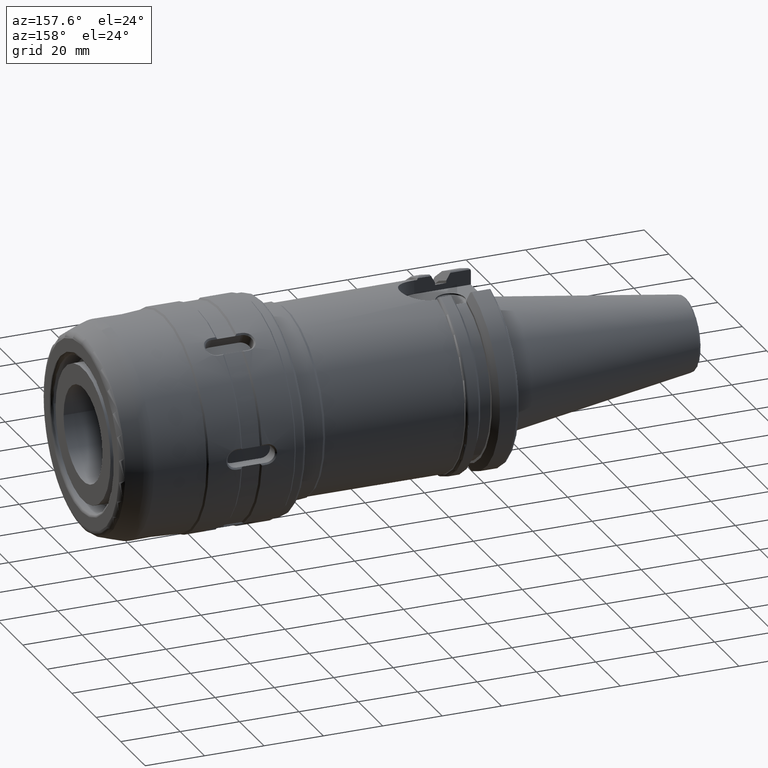
[diagram: clean part render]
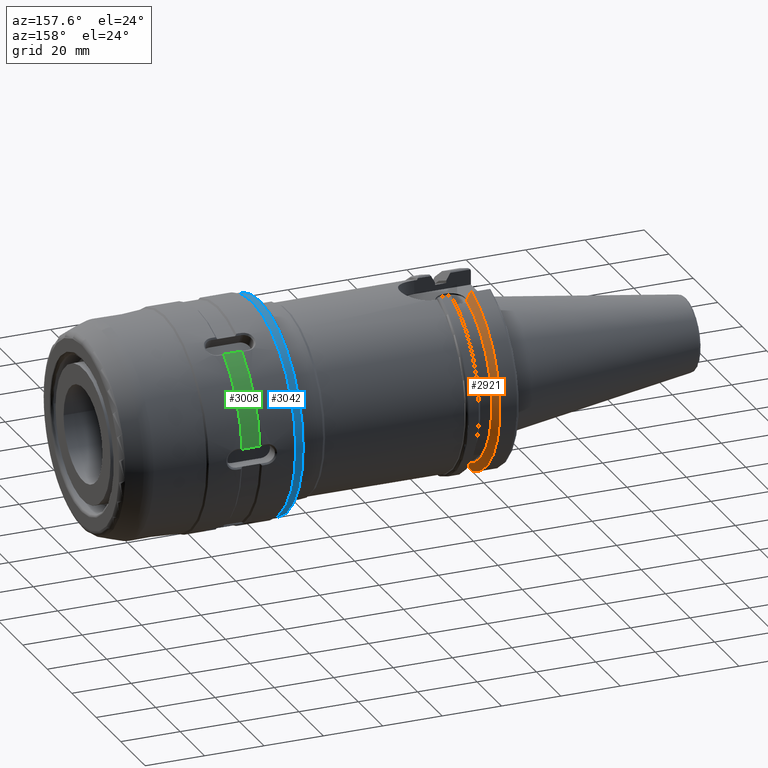
[diagram: same view with three faces highlighted in distinct colors, each labeled with its STEP entity id]
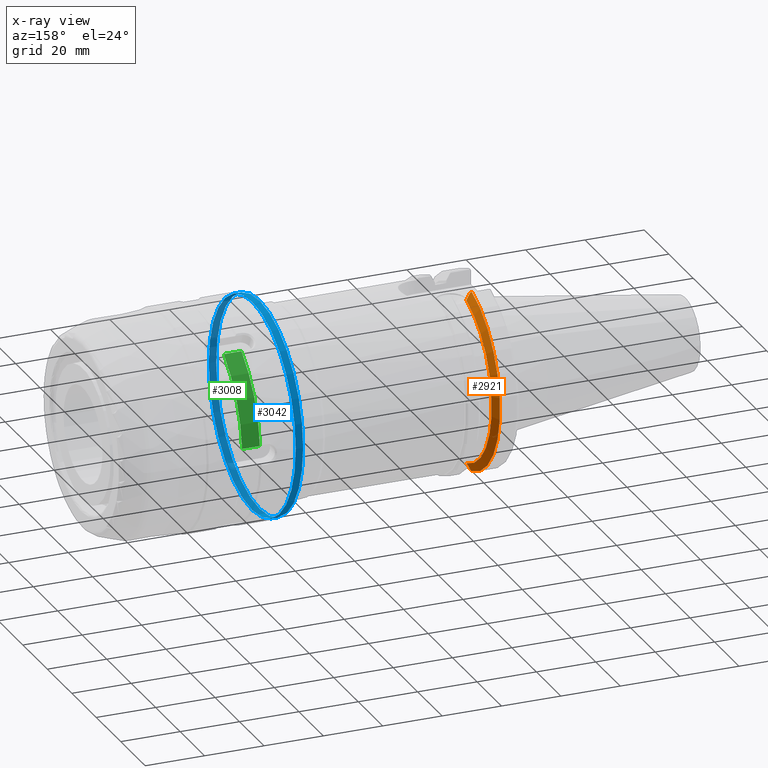
[diagram: x-ray of the same camera — body ghosted, the three highlighted faces saturated]
A machine part, auxiliary view with three faces highlighted in distinct colors.
The next image is the same camera in x-ray (body ghosted, the three faces saturated) — at least one of them is partly hidden behind the body in this view.
Their STEP definitions:

[orange] entity #2921 — the highlighted conical surface has half-angle 60 deg.
#42=(
BOUNDED_CURVE()
B_SPLINE_CURVE(2,(#4444,#4445,#4446),.UNSPECIFIED.,.F.,.F.)
B_SPLINE_CURVE_WITH_KNOTS((3,3),(0.,0.27654914279601),.UNSPECIFIED.)
CURVE()
GEOMETRIC_REPRESENTATION_ITEM()
RATIONAL_B_SPLINE_CURVE((1.,1.00095203903532,1.00031614444885))
REPRESENTATION_ITEM('')
);
#50=(
BOUNDED_CURVE()
B_SPLINE_CURVE(2,(#4624,#4625,#4626),.UNSPECIFIED.,.F.,.F.)
B_SPLINE_CURVE_WITH_KNOTS((3,3),(0.,0.0639048713675641),.UNSPECIFIED.)
CURVE()
GEOMETRIC_REPRESENTATION_ITEM()
RATIONAL_B_SPLINE_CURVE((1.,1.00028444218295,1.00047644010593))
REPRESENTATION_ITEM('')
);
#54=(
BOUNDED_CURVE()
B_SPLINE_CURVE(2,(#4666,#4667,#4668),.UNSPECIFIED.,.F.,.F.)
B_SPLINE_CURVE_WITH_KNOTS((3,3),(0.055058646739779,0.33160778953585),
 .UNSPECIFIED.)
CURVE()
GEOMETRIC_REPRESENTATION_ITEM()
RATIONAL_B_SPLINE_CURVE((1.00031614444948,1.00095203903721,1.))
REPRESENTATION_ITEM('')
);
#58=(
BOUNDED_CURVE()
B_SPLINE_CURVE(2,(#4695,#4696,#4697),.UNSPECIFIED.,.F.,.F.)
B_SPLINE_CURVE_WITH_KNOTS((3,3),(0.329353533631212,0.393258405001024),
 .UNSPECIFIED.)
CURVE()
GEOMETRIC_REPRESENTATION_ITEM()
RATIONAL_B_SPLINE_CURVE((1.00047644010573,1.00028444218283,1.))
REPRESENTATION_ITEM('')
);
#192=CONICAL_SURFACE('',#3212,30.3546886482472,1.0471975511966);
#263=FACE_OUTER_BOUND('',#446,.T.);
#446=EDGE_LOOP('',(#2173,#2174,#2175,#2176,#2177,#2178));
#627=CIRCLE('',#3211,31.75);
#628=CIRCLE('',#3213,28.9593772964944);
#1255=VERTEX_POINT('',#4441);
#1256=VERTEX_POINT('',#4443);
#1293=VERTEX_POINT('',#4622);
#1305=VERTEX_POINT('',#4663);
#1306=VERTEX_POINT('',#4665);
#1310=VERTEX_POINT('',#4694);
#1556=EDGE_CURVE('',#1256,#1255,#42,.T.);
#1606=EDGE_CURVE('',#1293,#1255,#50,.T.);
#1622=EDGE_CURVE('',#1306,#1305,#54,.T.);
#1633=EDGE_CURVE('',#1306,#1310,#58,.T.);
#1635=EDGE_CURVE('',#1293,#1310,#627,.T.);
#1636=EDGE_CURVE('',#1256,#1305,#628,.T.);
#2173=ORIENTED_EDGE('',*,*,#1606,.F.);
#2174=ORIENTED_EDGE('',*,*,#1635,.T.);
#2175=ORIENTED_EDGE('',*,*,#1633,.F.);
#2176=ORIENTED_EDGE('',*,*,#1622,.T.);
#2177=ORIENTED_EDGE('',*,*,#1636,.F.);
#2178=ORIENTED_EDGE('',*,*,#1556,.T.);
#2921=ADVANCED_FACE('',(#263),#192,.T.);
#3211=AXIS2_PLACEMENT_3D('',#4700,#3658,#3659);
#3212=AXIS2_PLACEMENT_3D('',#4701,#3660,#3661);
#3213=AXIS2_PLACEMENT_3D('',#4702,#3662,#3663);
#3658=DIRECTION('center_axis',(1.,0.,0.));
#3659=DIRECTION('ref_axis',(0.,0.,-1.));
#3660=DIRECTION('center_axis',(-1.,0.,0.));
#3661=DIRECTION('ref_axis',(0.,1.,0.));
#3662=DIRECTION('center_axis',(1.,0.,0.));
#3663=DIRECTION('ref_axis',(0.,0.,-1.));
#4441=CARTESIAN_POINT('',(7.92858530351256,8.19,-30.1755016258903));
#4443=CARTESIAN_POINT('',(9.261,8.19,-27.7771386827498));
#4444=CARTESIAN_POINT('Ctrl Pts',(9.261,8.19,-27.7771386827498));
#4445=CARTESIAN_POINT('Ctrl Pts',(8.62236356152083,8.19,-28.930368953976));
#4446=CARTESIAN_POINT('Ctrl Pts',(7.92858530351256,8.19,-30.1755016258903));
#4622=CARTESIAN_POINT('',(7.64983323092436,8.67204822802685,-30.5427254764662));
#4624=CARTESIAN_POINT('Ctrl Pts',(7.64983323092436,8.67204822802685,-30.5427254764662));
#4625=CARTESIAN_POINT('Ctrl Pts',(7.7908914812163,8.42917748262641,-30.3577067892629));
#4626=CARTESIAN_POINT('Ctrl Pts',(7.92858530351256,8.19,-30.1755016258903));
#4663=CARTESIAN_POINT('',(9.261,8.19,27.7771386827498));
#4665=CARTESIAN_POINT('',(7.92858530351257,8.19,30.1755016258903));
#4666=CARTESIAN_POINT('Ctrl Pts',(7.92858530351257,8.19,30.1755016258903));
#4667=CARTESIAN_POINT('Ctrl Pts',(8.62236356152031,8.19,28.930368953977));
#4668=CARTESIAN_POINT('Ctrl Pts',(9.261,8.19,27.7771386827498));
#4694=CARTESIAN_POINT('',(7.64983323092436,8.67204822802685,30.5427254764662));
#4695=CARTESIAN_POINT('Ctrl Pts',(7.92858530351257,8.19,30.1755016258903));
#4696=CARTESIAN_POINT('Ctrl Pts',(7.7908914812116,8.42917748263466,30.3577067892692));
#4697=CARTESIAN_POINT('Ctrl Pts',(7.64983323092436,8.67204822802685,30.5427254764662));
#4700=CARTESIAN_POINT('Origin',(7.64983323092436,0.,0.));
#4701=CARTESIAN_POINT('Origin',(8.45541661546218,0.,0.));
#4702=CARTESIAN_POINT('Origin',(9.261,0.,0.));

[blue] entity #3042 — the highlighted cylindrical surface (bore or boss wall) has radius 35.5 mm, axis along (1, 0, 0).
#384=FACE_OUTER_BOUND('',#573,.T.);
#573=EDGE_LOOP('',(#2794,#2795,#2796,#2797,#2798));
#710=CIRCLE('',#3404,35.5);
#711=CIRCLE('',#3405,35.5);
#713=CIRCLE('',#3408,35.5);
#940=LINE('',#6376,#1165);
#1165=VECTOR('',#4213,35.5);
#1491=VERTEX_POINT('',#6368);
#1492=VERTEX_POINT('',#6369);
#1493=VERTEX_POINT('',#6374);
#1927=EDGE_CURVE('',#1491,#1492,#710,.T.);
#1928=EDGE_CURVE('',#1492,#1491,#711,.T.);
#1930=EDGE_CURVE('',#1493,#1493,#713,.T.);
#1931=EDGE_CURVE('',#1493,#1492,#940,.T.);
#2794=ORIENTED_EDGE('',*,*,#1930,.F.);
#2795=ORIENTED_EDGE('',*,*,#1931,.T.);
#2796=ORIENTED_EDGE('',*,*,#1927,.F.);
#2797=ORIENTED_EDGE('',*,*,#1928,.F.);
#2798=ORIENTED_EDGE('',*,*,#1931,.F.);
#2873=CYLINDRICAL_SURFACE('',#3407,35.5);
#3042=ADVANCED_FACE('',(#384),#2873,.T.);
#3404=AXIS2_PLACEMENT_3D('',#6370,#4203,#4204);
#3405=AXIS2_PLACEMENT_3D('',#6371,#4205,#4206);
#3407=AXIS2_PLACEMENT_3D('',#6373,#4209,#4210);
#3408=AXIS2_PLACEMENT_3D('',#6375,#4211,#4212);
#4203=DIRECTION('center_axis',(-1.,0.,0.));
#4204=DIRECTION('ref_axis',(0.,-1.,1.83697019872103E-16));
#4205=DIRECTION('center_axis',(-1.,0.,0.));
#4206=DIRECTION('ref_axis',(0.,-1.,1.83697019872103E-16));
#4209=DIRECTION('center_axis',(1.,0.,0.));
#4210=DIRECTION('ref_axis',(0.,1.,0.));
#4211=DIRECTION('center_axis',(1.,0.,0.));
#4212=DIRECTION('ref_axis',(0.,0.,-1.));
#4213=DIRECTION('',(-1.,0.,0.));
#6368=CARTESIAN_POINT('',(1.,-4.3474961369731E-15,35.5));
#6369=CARTESIAN_POINT('',(1.,-35.5,-4.3474961369731E-15));
#6370=CARTESIAN_POINT('Origin',(1.,0.,0.));
#6371=CARTESIAN_POINT('Origin',(1.,0.,0.));
#6373=CARTESIAN_POINT('Origin',(1.75,0.,0.));
#6374=CARTESIAN_POINT('',(3.5,-35.5,-4.3474961369731E-15));
#6375=CARTESIAN_POINT('Origin',(3.5,0.,0.));
#6376=CARTESIAN_POINT('',(1.75,-35.5,-4.3474961369731E-15));

[green] entity #3008 — the highlighted cylindrical surface (partial cylindrical patch) has radius 35.5 mm, axis along (1, 0, 0).
#350=FACE_OUTER_BOUND('',#536,.T.);
#536=EDGE_LOOP('',(#2592,#2593,#2594,#2595));
#673=CIRCLE('',#3328,35.5);
#677=CIRCLE('',#3339,35.5);
#899=LINE('',#5920,#1124);
#910=LINE('',#6052,#1135);
#1124=VECTOR('',#4004,10.);
#1135=VECTOR('',#4047,10.);
#1437=VERTEX_POINT('',#5917);
#1438=VERTEX_POINT('',#5919);
#1445=VERTEX_POINT('',#6025);
#1450=VERTEX_POINT('',#6048);
#1839=EDGE_CURVE('',#1438,#1437,#899,.T.);
#1851=EDGE_CURVE('',#1445,#1438,#673,.T.);
#1859=EDGE_CURVE('',#1450,#1437,#677,.T.);
#1860=EDGE_CURVE('',#1450,#1445,#910,.T.);
#2592=ORIENTED_EDGE('',*,*,#1839,.T.);
#2593=ORIENTED_EDGE('',*,*,#1859,.F.);
#2594=ORIENTED_EDGE('',*,*,#1860,.T.);
#2595=ORIENTED_EDGE('',*,*,#1851,.T.);
#2861=CYLINDRICAL_SURFACE('',#3340,35.5);
#3008=ADVANCED_FACE('',(#350),#2861,.T.);
#3328=AXIS2_PLACEMENT_3D('',#6026,#4019,#4020);
#3339=AXIS2_PLACEMENT_3D('',#6050,#4043,#4044);
#3340=AXIS2_PLACEMENT_3D('',#6051,#4045,#4046);
#4004=DIRECTION('',(1.,0.,0.));
#4019=DIRECTION('center_axis',(1.,0.,0.));
#4020=DIRECTION('ref_axis',(0.,0.,-1.));
#4043=DIRECTION('center_axis',(1.,0.,0.));
#4044=DIRECTION('ref_axis',(0.,0.,-1.));
#4045=DIRECTION('center_axis',(1.,0.,0.));
#4046=DIRECTION('ref_axis',(0.,1.,0.));
#4047=DIRECTION('',(-1.,0.,0.));
#5917=CARTESIAN_POINT('',(21.5,20.2845823671773,29.1339272702669));
#5919=CARTESIAN_POINT('',(15.5,20.2845823671773,29.1339272702669));
#5920=CARTESIAN_POINT('',(18.5,20.2845823671773,29.1339272702669));
#6025=CARTESIAN_POINT('',(15.5,35.373012311648,3.));
#6026=CARTESIAN_POINT('Origin',(15.5,0.,0.));
#6048=CARTESIAN_POINT('',(21.5,35.373012311648,3.));
#6050=CARTESIAN_POINT('Origin',(21.5,0.,0.));
#6051=CARTESIAN_POINT('Origin',(18.5,0.,0.));
#6052=CARTESIAN_POINT('',(18.5,35.373012311648,3.));